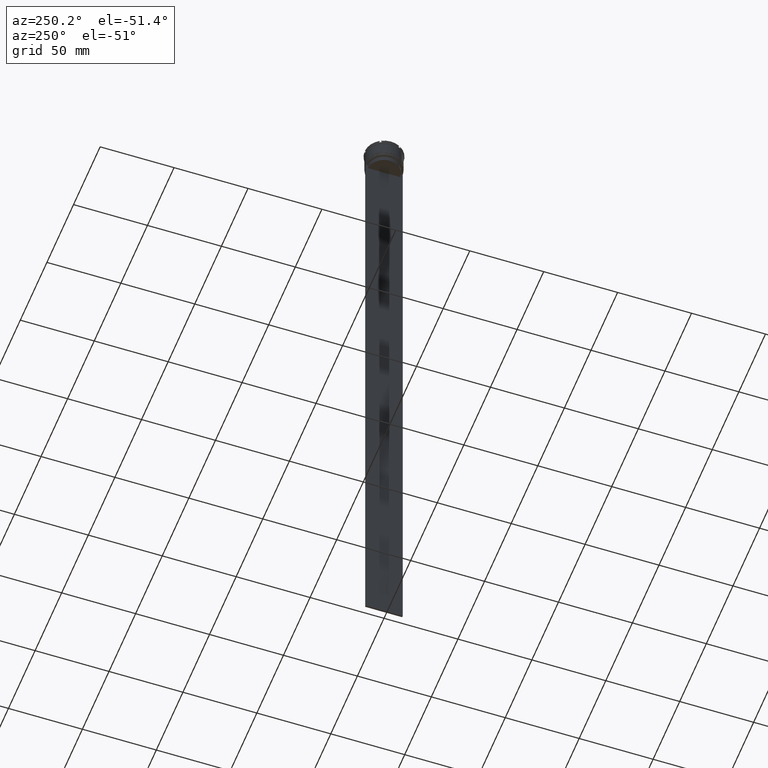
[diagram: clean part render]
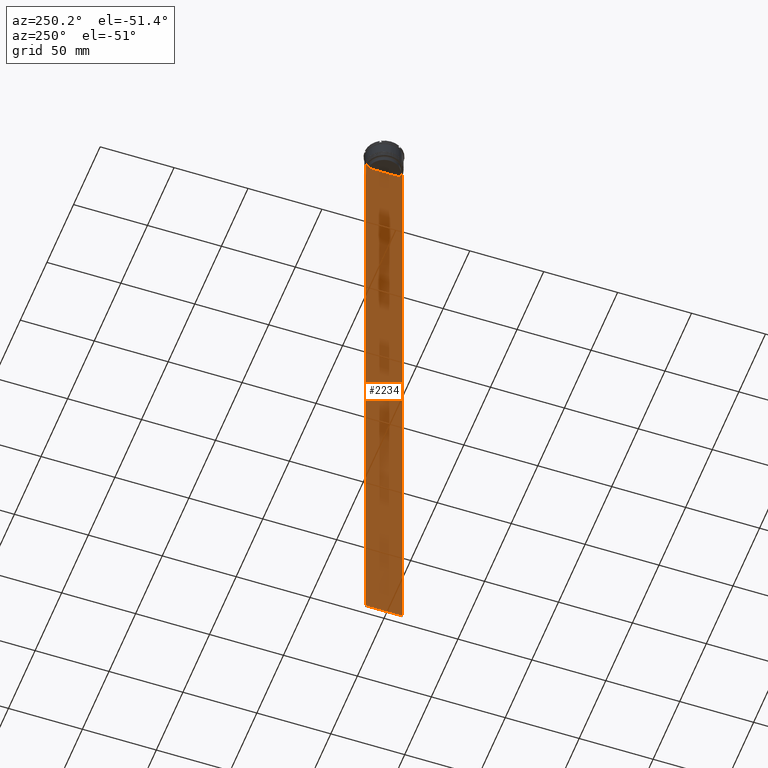
[diagram: same view with one face highlighted and labeled with its STEP entity id]
A machine part, auxiliary view. The second image highlights one B-rep face of the part: STEP entity #2234.
In plain terms, the highlighted planar face has unit normal (-1, 0, 0).
Its self-contained STEP definition (entity closure, byte-faithful):
#37 = LINE ( 'NONE', #2300, #1456 ) ;
#51 = VERTEX_POINT ( 'NONE', #2325 ) ;
#54 = ORIENTED_EDGE ( 'NONE', *, *, #874, .F. ) ;
#69 = ORIENTED_EDGE ( 'NONE', *, *, #267, .F. ) ;
#70 = ORIENTED_EDGE ( 'NONE', *, *, #1343, .F. ) ;
#98 = EDGE_CURVE ( 'NONE', #2179, #1860, #2584, .T. ) ;
#254 = ORIENTED_EDGE ( 'NONE', *, *, #2449, .F. ) ;
#267 = EDGE_CURVE ( 'NONE', #1068, #51, #1956, .T. ) ;
#270 = CARTESIAN_POINT ( 'NONE',  ( -0.5000000000000000000, 11.05536450345590538, -14.33333719074559376 ) ) ;
#355 = CARTESIAN_POINT ( 'NONE',  ( -0.5000000000000000000, -10.88852607105296144, -17.00000000000000000 ) ) ;
#359 = CARTESIAN_POINT ( 'NONE',  ( -0.5000000000000000000, -10.88852607105296322, -14.50000000000000000 ) ) ;
#403 = VERTEX_POINT ( 'NONE', #355 ) ;
#407 = VERTEX_POINT ( 'NONE', #411 ) ;
#411 = CARTESIAN_POINT ( 'NONE',  ( -0.5000000000000000000, -12.49999999999999289, -14.00000000000000178 ) ) ;
#432 = VECTOR ( 'NONE', #1677, 1000.000000000000000 ) ;
#460 = DIRECTION ( 'NONE',  ( 0.000000000000000000, -1.000000000000000000, 0.000000000000000000 ) ) ;
#464 = CARTESIAN_POINT ( 'NONE',  ( -0.5000000000000000000, 10.90000000000000213, -17.00000000000000000 ) ) ;
#472 = CARTESIAN_POINT ( 'NONE',  ( -0.5000000000000000000, 11.22219891375843304, -14.16667035472756808 ) ) ;
#487 = CARTESIAN_POINT ( 'NONE',  ( -0.5000000000000000000, -12.49999999999999289, -464.0000000000000000 ) ) ;
#520 = VECTOR ( 'NONE', #2420, 1000.000000000000000 ) ;
#549 = CARTESIAN_POINT ( 'NONE',  ( -0.5000000000000000000, -11.38902980942626719, -14.00000000000000178 ) ) ;
#554 = ORIENTED_EDGE ( 'NONE', *, *, #1067, .F. ) ;
#613 = VECTOR ( 'NONE', #2374, 1000.000000000000000 ) ;
#639 = CARTESIAN_POINT ( 'NONE',  ( -0.5000000000000000000, 12.50000000000000711, -14.00000000000000178 ) ) ;
#651 = DIRECTION ( 'NONE',  ( -1.000000000000000000, 0.000000000000000000, 0.000000000000000000 ) ) ;
#671 = CARTESIAN_POINT ( 'NONE',  ( -0.5000000000000000000, 12.50000000000000711, -464.0000000000000000 ) ) ;
#673 = DIRECTION ( 'NONE',  ( 0.000000000000000000, 0.000000000000000000, -1.000000000000000000 ) ) ;
#674 = LINE ( 'NONE', #2231, #1833 ) ;
#702 = LINE ( 'NONE', #1596, #2027 ) ;
#704 = CARTESIAN_POINT ( 'NONE',  ( -0.5000000000000000000, -12.49999999999999289, -464.0000000000000000 ) ) ;
#755 = VERTEX_POINT ( 'NONE', #2716 ) ;
#802 = EDGE_LOOP ( 'NONE', ( #69, #2733, #2136, #975, #2062, #54, #1828, #254, #1962, #554, #1356, #70 ) ) ;
#808 = VECTOR ( 'NONE', #460, 1000.000000000000000 ) ;
#830 = CARTESIAN_POINT ( 'NONE',  ( -0.5000000000000000000, -11.38902980942626719, -14.00000000000000178 ) ) ;
#861 = LINE ( 'NONE', #464, #1269 ) ;
#874 = EDGE_CURVE ( 'NONE', #407, #1563, #1301, .T. ) ;
#893 = VERTEX_POINT ( 'NONE', #1694 ) ;
#916 = CARTESIAN_POINT ( 'NONE',  ( -0.5000000000000000000, 12.38991525394746773, -14.00000000000000178 ) ) ;
#941 = EDGE_CURVE ( 'NONE', #2433, #1068, #1552, .T. ) ;
#975 = ORIENTED_EDGE ( 'NONE', *, *, #98, .T. ) ;
#1005 = VECTOR ( 'NONE', #673, 1000.000000000000000 ) ;
#1016 = EDGE_CURVE ( 'NONE', #893, #403, #861, .T. ) ;
#1067 = EDGE_CURVE ( 'NONE', #403, #755, #37, .T. ) ;
#1068 = VERTEX_POINT ( 'NONE', #1415 ) ;
#1069 = CARTESIAN_POINT ( 'NONE',  ( -0.5000000000000000000, -12.49999999999999289, -14.00000000000000178 ) ) ;
#1253 = CARTESIAN_POINT ( 'NONE',  ( -0.5000000000000000000, -11.05536450423839234, -14.33333718996393102 ) ) ;
#1269 = VECTOR ( 'NONE', #1357, 1000.000000000000000 ) ;
#1301 = LINE ( 'NONE', #2603, #613 ) ;
#1323 = EDGE_CURVE ( 'NONE', #755, #2301, #2310, .T. ) ;
#1343 = EDGE_CURVE ( 'NONE', #51, #893, #674, .T. ) ;
#1356 = ORIENTED_EDGE ( 'NONE', *, *, #1016, .F. ) ;
#1357 = DIRECTION ( 'NONE',  ( 0.000000000000000000, -1.000000000000000000, 0.000000000000000000 ) ) ;
#1415 = CARTESIAN_POINT ( 'NONE',  ( -0.5000000000000000000, 11.38902980942626719, -14.00000000000000178 ) ) ;
#1456 = VECTOR ( 'NONE', #2698, 1000.000000000000000 ) ;
#1468 = AXIS2_PLACEMENT_3D ( 'NONE', #2185, #651, #2625 ) ;
#1531 = FACE_OUTER_BOUND ( 'NONE', #802, .T. ) ;
#1552 = LINE ( 'NONE', #2658, #1597 ) ;
#1563 = VERTEX_POINT ( 'NONE', #487 ) ;
#1564 = DIRECTION ( 'NONE',  ( 0.000000000000000000, -1.000000000000000000, 0.000000000000000000 ) ) ;
#1596 = CARTESIAN_POINT ( 'NONE',  ( -0.5000000000000000000, -12.49999999999999289, -14.00000000000000178 ) ) ;
#1597 = VECTOR ( 'NONE', #1564, 1000.000000000000000 ) ;
#1677 = DIRECTION ( 'NONE',  ( 0.000000000000000000, 1.000000000000000000, 0.000000000000000000 ) ) ;
#1694 = CARTESIAN_POINT ( 'NONE',  ( -0.5000000000000000000, 10.88852607105296144, -17.00000000000000000 ) ) ;
#1729 = CARTESIAN_POINT ( 'NONE',  ( -0.5000000000000000000, -12.38991525394746773, -14.00000000000000178 ) ) ;
#1761 = VERTEX_POINT ( 'NONE', #1729 ) ;
#1810 = EDGE_CURVE ( 'NONE', #1761, #407, #1988, .T. ) ;
#1828 = ORIENTED_EDGE ( 'NONE', *, *, #1810, .F. ) ;
#1833 = VECTOR ( 'NONE', #2640, 1000.000000000000000 ) ;
#1860 = VERTEX_POINT ( 'NONE', #671 ) ;
#1956 = B_SPLINE_CURVE_WITH_KNOTS ( 'NONE', 3,
 ( #2268, #472, #270, #2056 ),
 .UNSPECIFIED., .F., .F.,
 ( 4, 4 ),
 ( 0.01935560801904634073, 0.02006307108468586772 ),
 .UNSPECIFIED. ) ;
#1962 = ORIENTED_EDGE ( 'NONE', *, *, #1323, .F. ) ;
#1988 = LINE ( 'NONE', #1069, #520 ) ;
#2027 = VECTOR ( 'NONE', #2476, 1000.000000000000000 ) ;
#2040 = EDGE_CURVE ( 'NONE', #1563, #1860, #2687, .T. ) ;
#2056 = CARTESIAN_POINT ( 'NONE',  ( -0.5000000000000000000, 10.88852607105296322, -14.50000000000000000 ) ) ;
#2062 = ORIENTED_EDGE ( 'NONE', *, *, #2040, .F. ) ;
#2136 = ORIENTED_EDGE ( 'NONE', *, *, #2692, .F. ) ;
#2179 = VERTEX_POINT ( 'NONE', #639 ) ;
#2185 = CARTESIAN_POINT ( 'NONE',  ( -0.5000000000000000000, -12.49999999999999289, 11.01999200639360765 ) ) ;
#2231 = CARTESIAN_POINT ( 'NONE',  ( -0.5000000000000000000, 10.88852607105296322, 0.000000000000000000 ) ) ;
#2232 = LINE ( 'NONE', #2641, #808 ) ;
#2234 = ADVANCED_FACE ( 'NONE', ( #1531 ), #2831, .T. ) ;
#2268 = CARTESIAN_POINT ( 'NONE',  ( -0.5000000000000000000, 11.38902980942626719, -14.00000000000000178 ) ) ;
#2300 = CARTESIAN_POINT ( 'NONE',  ( -0.5000000000000000000, -10.88852607105296322, 0.000000000000000000 ) ) ;
#2301 = VERTEX_POINT ( 'NONE', #549 ) ;
#2310 = B_SPLINE_CURVE_WITH_KNOTS ( 'NONE', 3,
 ( #359, #1253, #2810, #830 ),
 .UNSPECIFIED., .F., .F.,
 ( 4, 4 ),
 ( 0.05041323384703226551, 0.05112713601261605068 ),
 .UNSPECIFIED. ) ;
#2325 = CARTESIAN_POINT ( 'NONE',  ( -0.5000000000000000000, 10.88852607105296322, -14.50000000000000000 ) ) ;
#2369 = CARTESIAN_POINT ( 'NONE',  ( -0.5000000000000000000, 12.50000000000000711, 11.01999200639360765 ) ) ;
#2374 = DIRECTION ( 'NONE',  ( 0.000000000000000000, 0.000000000000000000, -1.000000000000000000 ) ) ;
#2420 = DIRECTION ( 'NONE',  ( 0.000000000000000000, -1.000000000000000000, 0.000000000000000000 ) ) ;
#2433 = VERTEX_POINT ( 'NONE', #916 ) ;
#2449 = EDGE_CURVE ( 'NONE', #2301, #1761, #702, .T. ) ;
#2476 = DIRECTION ( 'NONE',  ( 0.000000000000000000, -1.000000000000000000, 0.000000000000000000 ) ) ;
#2584 = LINE ( 'NONE', #2369, #1005 ) ;
#2603 = CARTESIAN_POINT ( 'NONE',  ( -0.5000000000000000000, -12.49999999999999289, 11.01999200639360765 ) ) ;
#2625 = DIRECTION ( 'NONE',  ( 0.000000000000000000, 0.000000000000000000, 1.000000000000000000 ) ) ;
#2640 = DIRECTION ( 'NONE',  ( 0.000000000000000000, 0.000000000000000000, -1.000000000000000000 ) ) ;
#2641 = CARTESIAN_POINT ( 'NONE',  ( -0.5000000000000000000, -12.49999999999999289, -14.00000000000000178 ) ) ;
#2658 = CARTESIAN_POINT ( 'NONE',  ( -0.5000000000000000000, -12.49999999999999289, -14.00000000000000178 ) ) ;
#2687 = LINE ( 'NONE', #704, #432 ) ;
#2692 = EDGE_CURVE ( 'NONE', #2179, #2433, #2232, .T. ) ;
#2698 = DIRECTION ( 'NONE',  ( -0.000000000000000000, -0.000000000000000000, 1.000000000000000000 ) ) ;
#2716 = CARTESIAN_POINT ( 'NONE',  ( -0.5000000000000000000, -10.88852607105296322, -14.50000000000000000 ) ) ;
#2733 = ORIENTED_EDGE ( 'NONE', *, *, #941, .F. ) ;
#2810 = CARTESIAN_POINT ( 'NONE',  ( -0.5000000000000000000, -11.22219891450652973, -14.16667035398018903 ) ) ;
#2831 = PLANE ( 'NONE',  #1468 ) ;